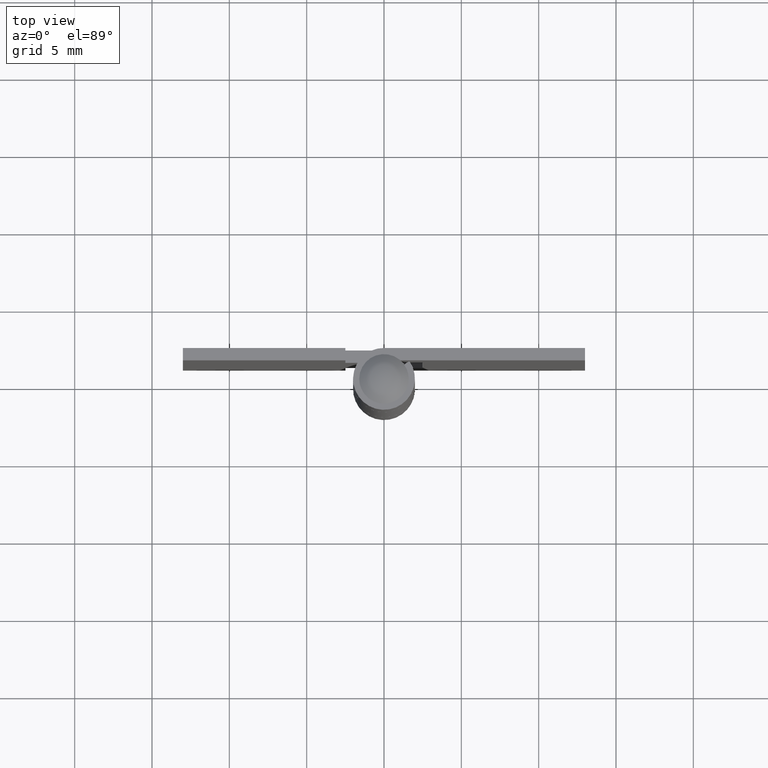
[diagram: clean part render]
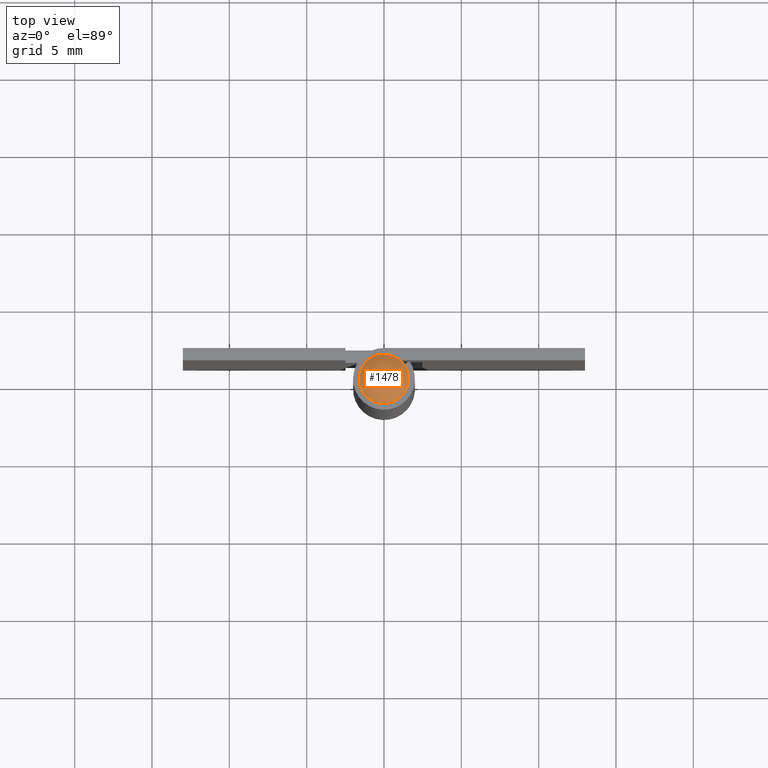
[diagram: same view with one face highlighted and labeled with its STEP entity id]
A machine part, top view. The second image highlights one B-rep face of the part: STEP entity #1478.
In plain terms, the highlighted face is a freeform B-spline surface patch.
Its self-contained STEP definition (entity closure, byte-faithful):
#1395=CARTESIAN_POINT('',(-1.600000131546700,0.0,38.0));
#1396=VERTEX_POINT('',#1395);
#1397=CARTESIAN_POINT('',(1.600000131546700,0.0,38.0));
#1398=VERTEX_POINT('',#1397);
#1399=CARTESIAN_POINT('',(-1.600000131546700,0.0,38.0));
#1400=CARTESIAN_POINT('',(-1.600059050548185,0.150538133639302,38.000000000000128));
#1401=CARTESIAN_POINT('',(-1.558127355660586,0.445034252052342,37.999999999999893));
#1402=CARTESIAN_POINT('',(-1.392204398225598,0.819404979982767,37.999999999999879));
#1403=CARTESIAN_POINT('',(-1.163215673612747,1.116517070481580,38.000000000000107));
#1404=CARTESIAN_POINT('',(-0.921354258487060,1.320015587331226,37.999999999999893));
#1405=CARTESIAN_POINT('',(-0.657643006678236,1.467257896140412,37.999999999999943));
#1406=CARTESIAN_POINT('',(-0.353760976872647,1.573926998770174,38.000000000000583));
#1407=CARTESIAN_POINT('',(0.039514763917612,1.620012298371351,37.999999999997542));
#1408=CARTESIAN_POINT('',(0.424905709970993,1.558028123129866,38.000000000003233));
#1409=CARTESIAN_POINT('',(0.722278930240434,1.434755251327008,37.999999999996028));
#1410=CARTESIAN_POINT('',(0.940906997856382,1.301895829896061,38.000000000003652));
#1411=CARTESIAN_POINT('',(1.172167003757860,1.107365362429609,37.999999999996291));
#1412=CARTESIAN_POINT('',(1.393721182981336,0.819857475545717,38.000000000002693));
#1413=CARTESIAN_POINT('',(1.559986073752495,0.431932761834338,37.999999999995303));
#1414=CARTESIAN_POINT('',(1.600056367149633,0.150539145086697,38.000000000007269));
#1415=CARTESIAN_POINT('',(1.600000131546700,0.0,38.0));
#1416=B_SPLINE_CURVE_WITH_KNOTS('',3,(#1399,#1400,#1401,#1402,#1403,#1404,#1405,#1406,#1407,#1408,#1409,#1410,#1411,#1412,#1413,#1414,#1415),.UNSPECIFIED.,.F.,.U.,(4,1,1,1,1,1,1,1,1,1,1,1,1,1,4),(0.000000146516000,0.451600295138239,0.883578786081456,1.217375739301580,1.570814719446068,1.826078627936039,2.120602836675563,2.532901922209077,3.004164764873156,3.279045080588134,3.495043329174986,3.769935816965420,4.182282274298892,4.574980790627527,5.026580198511438),.UNSPECIFIED.);
#1417=EDGE_CURVE('',#1396,#1398,#1416,.T.);
#1419=CARTESIAN_POINT('',(1.600000131546700,0.0,38.0));
#1420=CARTESIAN_POINT('',(1.600008252226271,-0.098171614112296,38.000000000000099));
#1421=CARTESIAN_POINT('',(1.581872939144806,-0.294514684749549,37.999999999999901));
#1422=CARTESIAN_POINT('',(1.492307784436408,-0.610718660329215,37.999999999999993));
#1423=CARTESIAN_POINT('',(1.346203116374148,-0.884055234961066,37.999999999999950));
#1424=CARTESIAN_POINT('',(1.146336144426056,-1.127556221065348,38.000000000000057));
#1425=CARTESIAN_POINT('',(0.912298612813900,-1.329473157399276,37.999999999999801));
#1426=CARTESIAN_POINT('',(0.628467267992640,-1.483424209225814,38.000000000000448));
#1427=CARTESIAN_POINT('',(0.351859683902079,-1.567301445736095,37.999999999999119));
#1428=CARTESIAN_POINT('',(0.066103568283441,-1.607919294145554,38.000000000002622));
#1429=CARTESIAN_POINT('',(-0.243312250890736,-1.594630298297084,37.999999999995843));
#1430=CARTESIAN_POINT('',(-0.592724590360949,-1.500235520669240,38.000000000002267));
#1431=CARTESIAN_POINT('',(-0.872586854389167,-1.352844924793265,38.000000000002430));
#1432=CARTESIAN_POINT('',(-1.118530538987970,-1.155994183410555,37.999999999992873));
#1433=CARTESIAN_POINT('',(-1.317667114087663,-0.927996753120461,38.000000000003674));
#1434=CARTESIAN_POINT('',(-1.484508683460777,-0.629227578523766,37.999999999999588));
#1435=CARTESIAN_POINT('',(-1.580072002818426,-0.314154070665006,37.999999999996533));
#1436=CARTESIAN_POINT('',(-1.600007310297805,-0.098174523607376,38.000000000006722));
#1437=CARTESIAN_POINT('',(-1.600000131546700,0.0,38.0));
#1438=B_SPLINE_CURVE_WITH_KNOTS('',3,(#1419,#1420,#1421,#1422,#1423,#1424,#1425,#1426,#1427,#1428,#1429,#1430,#1431,#1432,#1433,#1434,#1435,#1436,#1437),.UNSPECIFIED.,.F.,.U.,(4,1,1,1,1,1,1,1,1,1,1,1,1,1,1,1,4),(0.000000146515673,0.294515719685972,0.589045989906828,0.981754331402505,1.217375739301386,1.531544959256626,1.904607259914366,2.179512690783857,2.395487765219292,2.768522310699733,3.102337991849877,3.475401859470101,3.711028819016250,4.044834498467044,4.378636119472157,4.732054909435031,5.026580198511438),.UNSPECIFIED.);
#1439=EDGE_CURVE('',#1398,#1396,#1438,.T.);
#1450=CARTESIAN_POINT('',(-1.465197203690679,-1.465197203690678,37.340599154698317));
#1451=CARTESIAN_POINT('',(-0.854525816330215,-1.709051632660428,37.886337044995400));
#1452=CARTESIAN_POINT('',(0.854525829796079,-1.709051632660428,37.886337044995400));
#1453=CARTESIAN_POINT('',(1.465197220190817,-1.465197197101812,37.340599139952680));
#1454=CARTESIAN_POINT('',(-1.709051632660428,-0.854525816330215,37.886337044995400));
#1455=CARTESIAN_POINT('',(-1.025141231833638,-1.025141231833636,38.649999999999977));
#1456=CARTESIAN_POINT('',(1.025141247988107,-1.025141231833636,38.649999999999977));
#1457=CARTESIAN_POINT('',(1.709051650627601,-0.854525811847935,37.886337024933013));
#1458=CARTESIAN_POINT('',(-1.709051632660428,0.854525829796080,37.886337044995400));
#1459=CARTESIAN_POINT('',(-1.025141231833638,1.025141247988108,38.649999999999977));
#1460=CARTESIAN_POINT('',(1.025141247988107,1.025141247988108,38.649999999999991));
#1461=CARTESIAN_POINT('',(1.709051650627601,0.854525825313801,37.886337024933020));
#1462=CARTESIAN_POINT('',(-1.465197197101813,1.465197220190817,37.340599139952694));
#1463=CARTESIAN_POINT('',(-0.854525811847936,1.709051650627602,37.886337024933013));
#1464=CARTESIAN_POINT('',(0.854525825313799,1.709051650627602,37.886337024933020));
#1465=CARTESIAN_POINT('',(1.465197213601950,1.465197213601950,37.340599125207021));
#1473=(BOUNDED_SURFACE()B_SPLINE_SURFACE(2,2,((#1450,#1454,#1458,#1462),(#1451,#1455,#1459,#1463),(#1452,#1456,#1460,#1464),(#1453,#1457,#1461,#1465)),.UNSPECIFIED.,.F.,.F.,.U.)B_SPLINE_SURFACE_WITH_KNOTS((3,1,3),(3,1,3),(0.054392423372716,1.0,1.945607591528445),(0.054392423372716,1.0,1.945607591528445),.UNSPECIFIED.)GEOMETRIC_REPRESENTATION_ITEM()RATIONAL_B_SPLINE_SURFACE(((1.399321851354086,1.199660925677043,1.199660925677043,1.399321857646716),(1.199660925677043,1.0,1.0,1.199660931969674),(1.199660925677043,1.0,1.0,1.199660931969674),(1.399321857646716,1.199660931969674,1.199660931969674,1.399321863939347)))REPRESENTATION_ITEM('')SURFACE());
#1474=ORIENTED_EDGE('',*,*,#1439,.F.);
#1475=ORIENTED_EDGE('',*,*,#1417,.F.);
#1476=EDGE_LOOP('',(#1474,#1475));
#1477=FACE_OUTER_BOUND('',#1476,.T.);
#1478=ADVANCED_FACE('',(#1477),#1473,.T.);